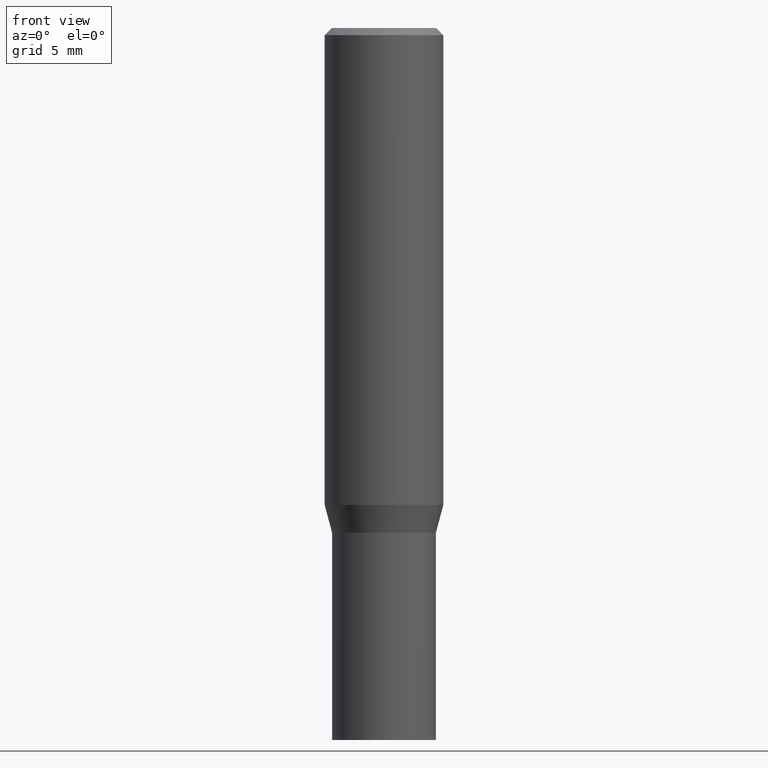
[diagram: clean part render]
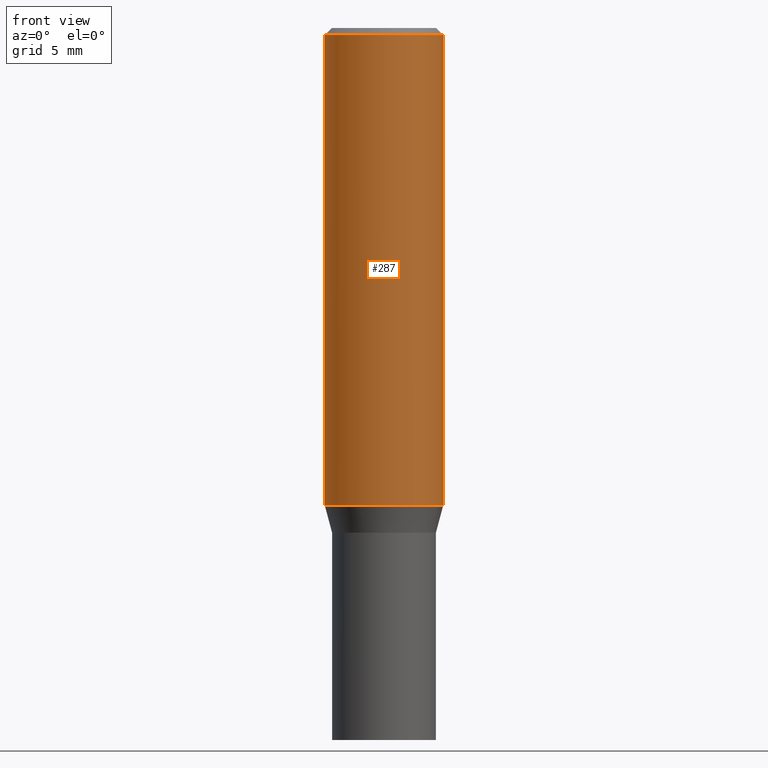
[diagram: same view with one face highlighted and labeled with its STEP entity id]
A machine part, front view. The second image highlights one B-rep face of the part: STEP entity #287.
In plain terms, the highlighted cylindrical surface (partial cylindrical patch) has radius 3.175 mm, axis along (-0, 0, 1).
Its self-contained STEP definition (entity closure, byte-faithful):
#1 = DIRECTION ( 'NONE',  ( -2.445468806185136597E-29, 3.491481338843145583E-15, 1.000000000000000000 ) ) ;
#15 = AXIS2_PLACEMENT_3D ( 'NONE', #407, #20, #89 ) ;
#17 = CARTESIAN_POINT ( 'NONE',  ( -0.1250000000000000000, -2.619992225786377762E-15, -1.004780007401926190 ) ) ;
#18 = DIRECTION ( 'NONE',  ( -2.445468806185136877E-29, 3.491481338843145188E-15, 1.000000000000000000 ) ) ;
#20 = DIRECTION ( 'NONE',  ( -2.445468806185136597E-29, 3.491481338843145583E-15, 1.000000000000000000 ) ) ;
#25 = DIRECTION ( 'NONE',  ( 1.000000000000000000, -6.982962677686266711E-15, 4.876176775795935793E-29 ) ) ;
#50 = DIRECTION ( 'NONE',  ( -2.445468806185136877E-29, 3.491481338843145188E-15, 1.000000000000000000 ) ) ;
#60 = ORIENTED_EDGE ( 'NONE', *, *, #78, .T. ) ;
#78 = EDGE_CURVE ( 'NONE', #229, #114, #402, .T. ) ;
#89 = DIRECTION ( 'NONE',  ( 1.000000000000000000, -6.982962677686262766E-15, 0.000000000000000000 ) ) ;
#114 = VERTEX_POINT ( 'NONE', #157 ) ;
#118 = DIRECTION ( 'NONE',  ( 1.000000000000000000, -6.982962677686266711E-15, 0.000000000000000000 ) ) ;
#156 = ORIENTED_EDGE ( 'NONE', *, *, #160, .F. ) ;
#157 = CARTESIAN_POINT ( 'NONE',  ( 0.1250000000000000000, -9.252425547934304180E-16, -0.01499999999999999944 ) ) ;
#160 = EDGE_CURVE ( 'NONE', #305, #114, #417, .T. ) ;
#164 = CARTESIAN_POINT ( 'NONE',  ( 0.1250000000000000000, -4.381040980197285939E-15, -1.004780007401926190 ) ) ;
#167 = CYLINDRICAL_SURFACE ( 'NONE', #346, 0.1250000000000000000 ) ;
#185 = ORIENTED_EDGE ( 'NONE', *, *, #199, .F. ) ;
#188 = VERTEX_POINT ( 'NONE', #17 ) ;
#191 = DIRECTION ( 'NONE',  ( -2.445468806185136597E-29, 3.491481338843145583E-15, 1.000000000000000000 ) ) ;
#199 = EDGE_CURVE ( 'NONE', #188, #305, #293, .T. ) ;
#206 = EDGE_CURVE ( 'NONE', #188, #229, #425, .T. ) ;
#229 = VERTEX_POINT ( 'NONE', #164 ) ;
#242 = VECTOR ( 'NONE', #50, 39.37007874015748143 ) ;
#263 = EDGE_LOOP ( 'NONE', ( #185, #382, #60, #156 ) ) ;
#287 = ADVANCED_FACE ( 'NONE', ( #415 ), #167, .T. ) ;
#293 = LINE ( 'NONE', #294, #447 ) ;
#294 = CARTESIAN_POINT ( 'NONE',  ( -0.1250000000000000000, 8.881784197001252323E-16, -6.148668862818632227E-30 ) ) ;
#305 = VERTEX_POINT ( 'NONE', #391 ) ;
#314 = CARTESIAN_POINT ( 'NONE',  ( 0.000000000000000000, 0.000000000000000000, 0.000000000000000000 ) ) ;
#333 = CARTESIAN_POINT ( 'NONE',  ( 3.668203209277705088E-31, -5.237222008264718399E-17, -0.01499999999999999944 ) ) ;
#346 = AXIS2_PLACEMENT_3D ( 'NONE', #314, #1, #25 ) ;
#376 = AXIS2_PLACEMENT_3D ( 'NONE', #333, #191, #118 ) ;
#382 = ORIENTED_EDGE ( 'NONE', *, *, #206, .T. ) ;
#391 = CARTESIAN_POINT ( 'NONE',  ( -0.1250000000000000000, -8.920930130844498047E-16, -0.01499999999999999944 ) ) ;
#402 = LINE ( 'NONE', #445, #242 ) ;
#407 = CARTESIAN_POINT ( 'NONE',  ( 2.457158165179881134E-29, -3.508170645486503389E-15, -1.004780007401926190 ) ) ;
#415 = FACE_OUTER_BOUND ( 'NONE', #263, .T. ) ;
#417 = CIRCLE ( 'NONE', #376, 0.1250000000000000000 ) ;
#425 = CIRCLE ( 'NONE', #15, 0.1250000000000000000 ) ;
#445 = CARTESIAN_POINT ( 'NONE',  ( 0.1250000000000000000, -8.728703347107833388E-16, 6.095220969744919741E-30 ) ) ;
#447 = VECTOR ( 'NONE', #18, 39.37007874015748143 ) ;